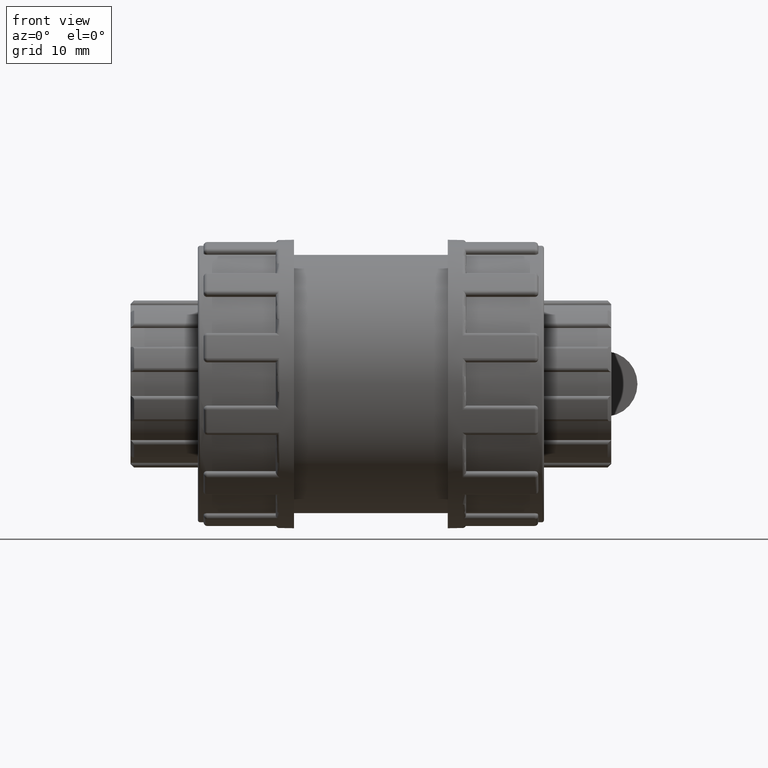
[diagram: clean part render]
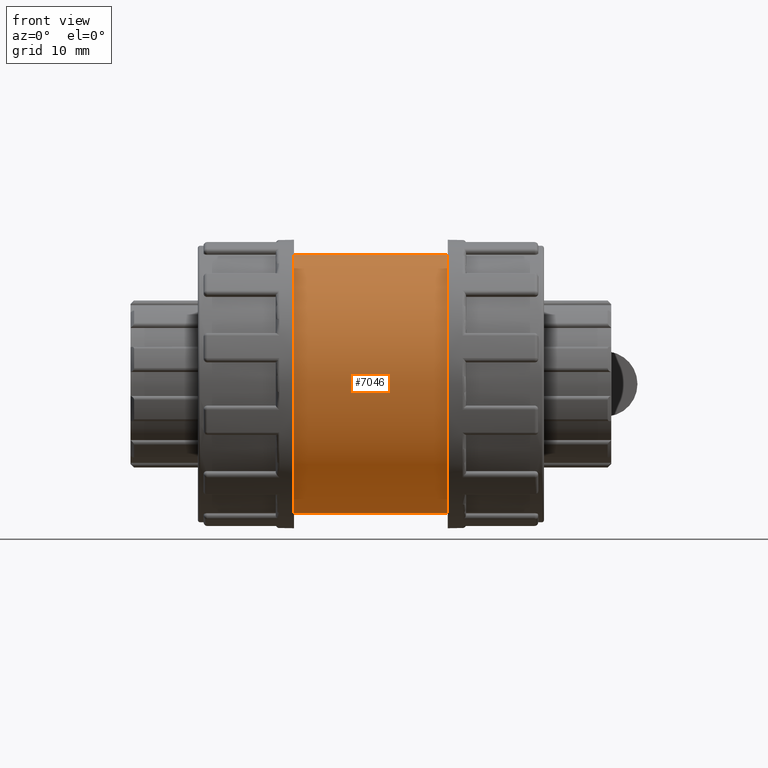
[diagram: same view with one face highlighted and labeled with its STEP entity id]
A machine part, front view. The second image highlights one B-rep face of the part: STEP entity #7046.
In plain terms, the highlighted cylindrical surface (bore or boss wall) has radius 20.25 mm, axis along (1, 0, 0).
Its self-contained STEP definition (entity closure, byte-faithful):
#103=B_SPLINE_CURVE_WITH_KNOTS('',3,(#11388,#11389,#11390,#11391,#11392,
#11393,#11394,#11395,#11396,#11397,#11398,#11399,#11400,#11401,#11402,#11403,
#11404,#11405,#11406,#11407,#11408,#11409,#11410,#11411,#11412,#11413,#11414,
#11415,#11416,#11417,#11418,#11419,#11420,#11421),.UNSPECIFIED.,.T.,.F.,
(4,2,2,2,2,2,2,2,2,2,2,2,2,2,2,2,4),(0.,0.256458272325988,0.512916544651976,
0.769255871433363,1.02559519821475,1.28193452499614,1.53827385177752,1.79473212410351,
2.0511903964295,2.30764866875549,2.56410694108148,2.82044626786286,3.07678559464425,
3.33312492142564,3.58946424820702,3.84592252053301,4.102380792859),
 .UNSPECIFIED.);
#220=FACE_BOUND('',#1304,.T.);
#221=FACE_BOUND('',#1305,.T.);
#849=FACE_OUTER_BOUND('',#1303,.T.);
#1303=EDGE_LOOP('',(#6414));
#1304=EDGE_LOOP('',(#6415));
#1305=EDGE_LOOP('',(#6416));
#2621=CIRCLE('',#7997,20.25);
#2622=CIRCLE('',#7999,20.25);
#2820=VERTEX_POINT('',#11387);
#3265=VERTEX_POINT('',#14005);
#3266=VERTEX_POINT('',#14008);
#3584=EDGE_CURVE('',#2820,#2820,#103,.T.);
#4317=EDGE_CURVE('',#3265,#3265,#2621,.T.);
#4318=EDGE_CURVE('',#3266,#3266,#2622,.T.);
#6414=ORIENTED_EDGE('',*,*,#4317,.T.);
#6415=ORIENTED_EDGE('',*,*,#3584,.T.);
#6416=ORIENTED_EDGE('',*,*,#4318,.F.);
#6615=CYLINDRICAL_SURFACE('',#7998,20.25);
#7046=ADVANCED_FACE('',(#849,#220,#221),#6615,.T.);
#7997=AXIS2_PLACEMENT_3D('',#14006,#10292,#10293);
#7998=AXIS2_PLACEMENT_3D('',#14007,#10294,#10295);
#7999=AXIS2_PLACEMENT_3D('',#14009,#10296,#10297);
#10292=DIRECTION('center_axis',(1.,0.,0.));
#10293=DIRECTION('ref_axis',(0.,0.,-1.));
#10294=DIRECTION('center_axis',(1.,0.,0.));
#10295=DIRECTION('ref_axis',(0.,1.,0.));
#10296=DIRECTION('center_axis',(1.,0.,0.));
#10297=DIRECTION('ref_axis',(0.,0.,-1.));
#11387=CARTESIAN_POINT('',(0.,19.0918830920368,-6.75));
#11388=CARTESIAN_POINT('Ctrl Pts',(-2.77555756156289E-16,19.0918830920368,
-6.75));
#11389=CARTESIAN_POINT('Ctrl Pts',(0.854860907753294,19.0918830920368,-6.75));
#11390=CARTESIAN_POINT('Ctrl Pts',(1.76176332087878,19.155330784381,-6.57780979006448));
#11391=CARTESIAN_POINT('Ctrl Pts',(3.42260896471446,19.3787802861457,-5.88703212647787));
#11392=CARTESIAN_POINT('Ctrl Pts',(4.17719080602039,19.5349647784251,-5.368750739998));
#11393=CARTESIAN_POINT('Ctrl Pts',(5.36847441678957,19.8238934935586,-4.17746712922881));
#11394=CARTESIAN_POINT('Ctrl Pts',(5.88696853128696,19.976199448298,-3.42277523071248));
#11395=CARTESIAN_POINT('Ctrl Pts',(6.57790484042057,20.1906160611833,-1.76152142624079));
#11396=CARTESIAN_POINT('Ctrl Pts',(6.75,20.25,-0.854464422604622));
#11397=CARTESIAN_POINT('Ctrl Pts',(6.75,20.25,0.854464422604622));
#11398=CARTESIAN_POINT('Ctrl Pts',(6.57790484042057,20.1906160611833,1.76152142624079));
#11399=CARTESIAN_POINT('Ctrl Pts',(5.88696853128696,19.976199448298,3.42277523071248));
#11400=CARTESIAN_POINT('Ctrl Pts',(5.36847441678957,19.8238934935586,4.17746712922881));
#11401=CARTESIAN_POINT('Ctrl Pts',(4.17719080602039,19.5349647784251,5.368750739998));
#11402=CARTESIAN_POINT('Ctrl Pts',(3.42260896471446,19.3787802861457,5.88703212647787));
#11403=CARTESIAN_POINT('Ctrl Pts',(1.76176332087878,19.155330784381,6.57780979006448));
#11404=CARTESIAN_POINT('Ctrl Pts',(0.854860907753294,19.0918830920368,6.75));
#11405=CARTESIAN_POINT('Ctrl Pts',(-0.854860907753294,19.0918830920368,
6.75));
#11406=CARTESIAN_POINT('Ctrl Pts',(-1.76176332087878,19.155330784381,6.57780979006448));
#11407=CARTESIAN_POINT('Ctrl Pts',(-3.42260896471446,19.3787802861457,5.88703212647787));
#11408=CARTESIAN_POINT('Ctrl Pts',(-4.17719080602039,19.5349647784251,5.368750739998));
#11409=CARTESIAN_POINT('Ctrl Pts',(-5.36847441678957,19.8238934935586,4.17746712922881));
#11410=CARTESIAN_POINT('Ctrl Pts',(-5.88696853128696,19.976199448298,3.42277523071248));
#11411=CARTESIAN_POINT('Ctrl Pts',(-6.57790484042057,20.1906160611833,1.76152142624079));
#11412=CARTESIAN_POINT('Ctrl Pts',(-6.75,20.25,0.854464422604623));
#11413=CARTESIAN_POINT('Ctrl Pts',(-6.75,20.25,-0.854464422604621));
#11414=CARTESIAN_POINT('Ctrl Pts',(-6.57790484042057,20.1906160611833,-1.76152142624078));
#11415=CARTESIAN_POINT('Ctrl Pts',(-5.88696853128696,19.976199448298,-3.42277523071248));
#11416=CARTESIAN_POINT('Ctrl Pts',(-5.36847441678958,19.8238934935586,-4.17746712922881));
#11417=CARTESIAN_POINT('Ctrl Pts',(-4.17719080602039,19.5349647784251,-5.368750739998));
#11418=CARTESIAN_POINT('Ctrl Pts',(-3.42260896471446,19.3787802861457,-5.88703212647787));
#11419=CARTESIAN_POINT('Ctrl Pts',(-1.76176332087878,19.155330784381,-6.57780979006448));
#11420=CARTESIAN_POINT('Ctrl Pts',(-0.854860907753294,19.0918830920368,
-6.75));
#11421=CARTESIAN_POINT('Ctrl Pts',(-2.77555756156289E-16,19.0918830920368,
-6.75));
#14005=CARTESIAN_POINT('',(-12.,20.25,0.));
#14006=CARTESIAN_POINT('Origin',(-12.,0.,0.));
#14007=CARTESIAN_POINT('Origin',(0.,0.,0.));
#14008=CARTESIAN_POINT('',(12.,20.25,0.));
#14009=CARTESIAN_POINT('Origin',(12.,0.,0.));